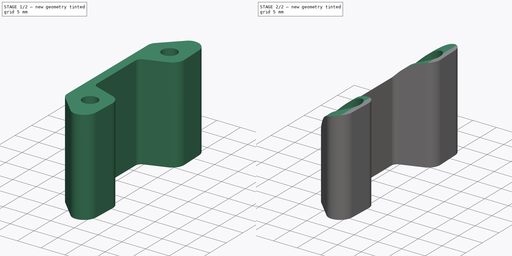
[diagram: build sequence overview — one tinted view per stage of 2, left to right]
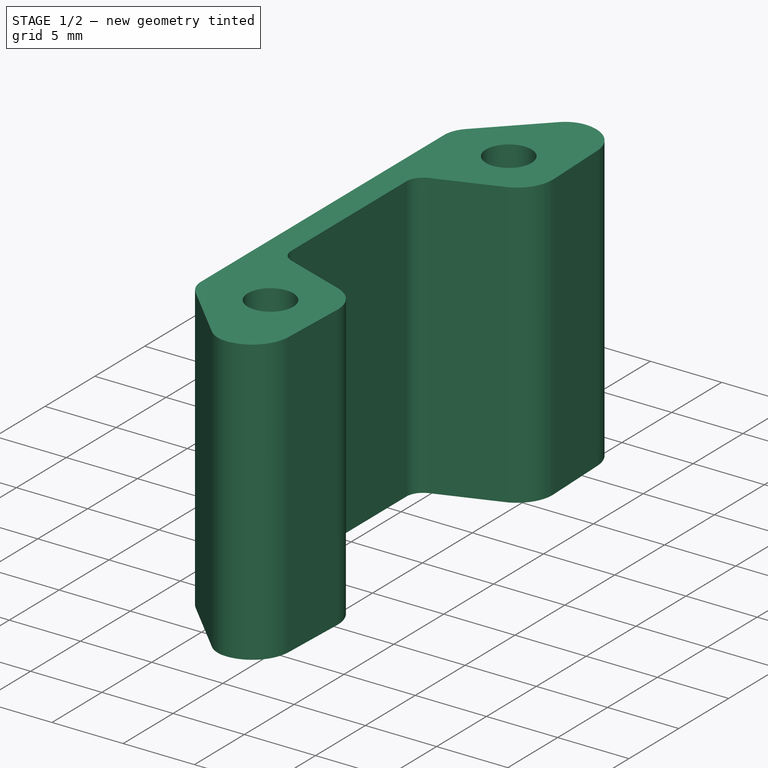
[diagram: stage 1 of 2 — iso view after this stage's code; geometry added in this stage tinted green]
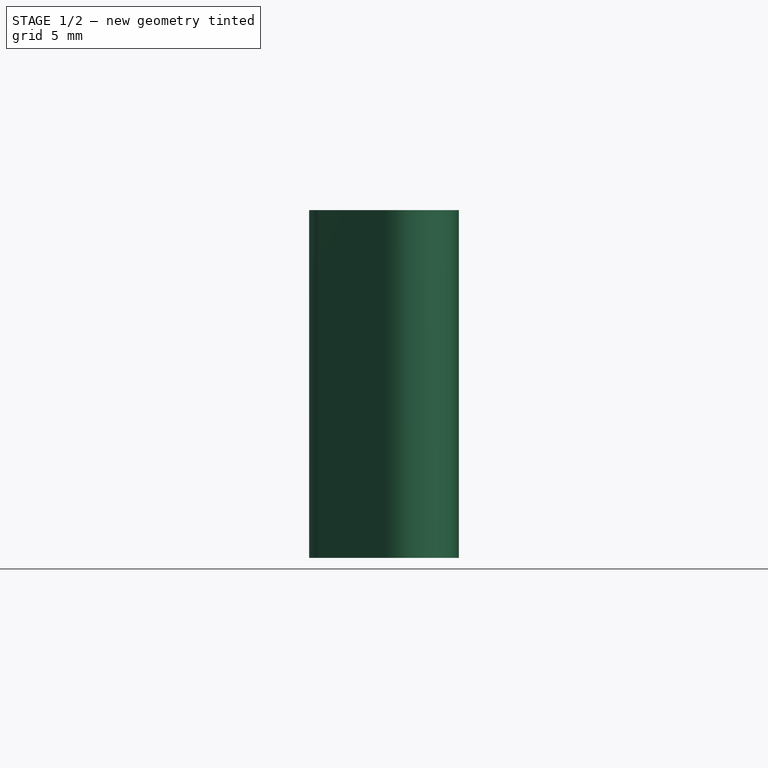
[diagram: stage 1 of 2 — front view after this stage's code; geometry added in this stage tinted green]
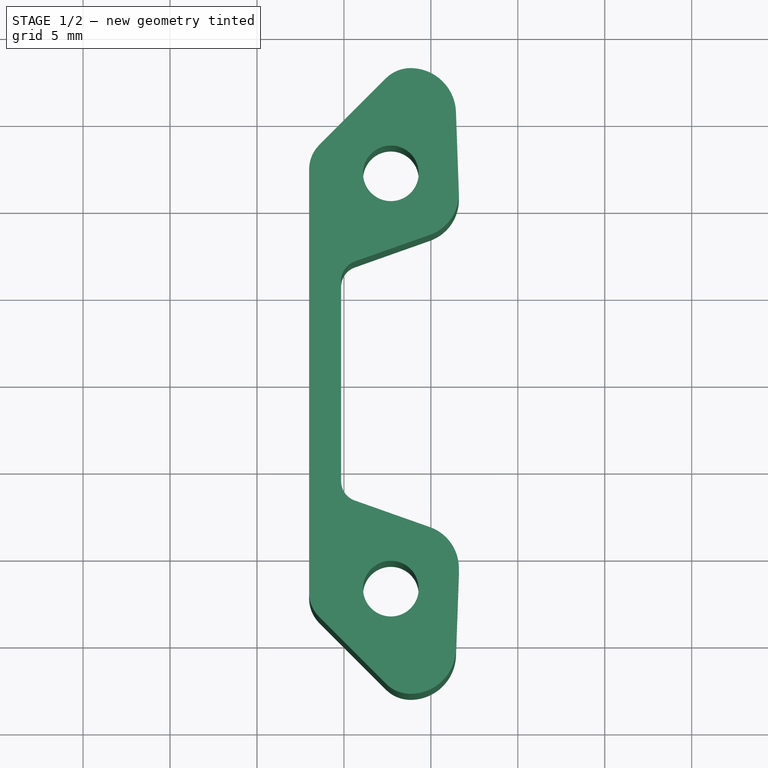
[diagram: stage 1 of 2 — top view after this stage's code; geometry added in this stage tinted green]
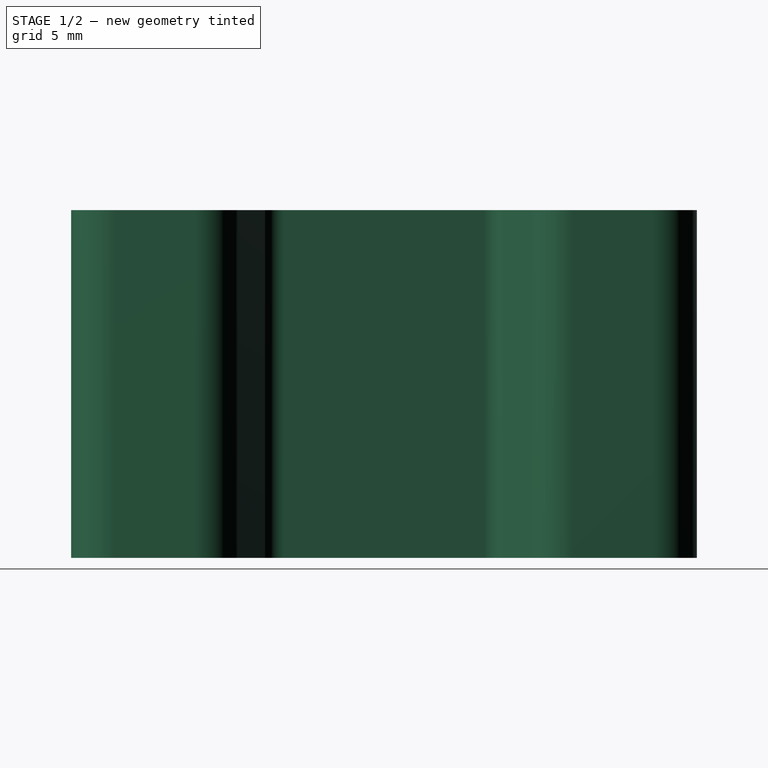
[diagram: stage 1 of 2 — right view after this stage's code; geometry added in this stage tinted green]
FCSTD DOCUMENT  (FreeCAD 1.0R39319 (Git))
Label: K93-10436-H7-L120_Bumperino
License: All rights reserved
LicenseURL: https://en.wikipedia.org/wiki/All_rights_reserved
objects: Part::Feature×5, Sketcher::SketchObject×3, PartDesign::Pocket×2, App::DocumentObjectGroupPython×1, PartDesign::Pad×1, PartDesign::Mirrored×1, PartDesign::Body×1
note: 23 computed .brp shape members not serialized (recipe doc carries the construction recipe); baked Part::Feature solids carry a one-line shape summary decoded from their .brp

FEATURE [App::DocumentObjectGroupPython] LayerContainer  label="Layers"  # scripted group (container) (typed FeaturePython)
FEATURE [Part::Feature] Wire
  shape: bbox 3.2 x 3.2 x 2e-07 mm, 0 faces, 0 solids (baked)
FEATURE [Part::Feature] Wire001
  shape: bbox 3.2 x 3.2 x 2e-07 mm, 0 faces, 0 solids (baked)
FEATURE [Part::Feature] Wire002
  shape: bbox 3.2 x 3.2 x 2e-07 mm, 0 faces, 0 solids (baked)
FEATURE [Part::Feature] Wire003
  shape: bbox 3.2 x 3.2 x 2e-07 mm, 0 faces, 0 solids (baked)
FEATURE [Part::Feature] Wire004  label="PanelConture"
  shape: bbox 104 x 35.99 x 2e-07 mm, 0 faces, 0 solids (baked)
FEATURE [Sketcher::SketchObject] Sketch
  ArcFitTolerance = 1e-06
  FullyConstrained = true
  MakeInternals = false
  sketch-geometry (12):
    g0: ArcOfCircle CenterX=-46.1716 CenterY=15.9943 CenterZ=0 NormalX=0 NormalY=0 NormalZ=1 AngleXU=0 Radius=1.99973 StartAngle=1.5708 EndAngle=2.35633
    g1: LineSegment StartX=-47.5858 StartY=17.4081 StartZ=0 EndX=-51.4142 EndY=13.5801 EndZ=0
    g2: ArcOfCircle CenterX=-50 CenterY=12.1658 CenterZ=0 NormalX=0 NormalY=0 NormalZ=1 AngleXU=0 Radius=2 StartAngle=2.35619 EndAngle=3.14159
    g3: ArcOfCircle CenterX=-46.1716 CenterY=15.3778 CenterZ=0 NormalX=0 NormalY=0 NormalZ=1 AngleXU=0 Radius=2.6162 StartAngle=0.0358549 EndAngle=1.5708
    g4: LineSegment StartX=-43.5571 StartY=15.4716 StartZ=0 EndX=-43.3913 EndY=10.8516 EndZ=0
    g5: ArcOfCircle CenterX=-45.8905 CenterY=10.7619 CenterZ=0 NormalX=0 NormalY=0 NormalZ=1 AngleXU=0 Radius=2.50074 StartAngle=5.05273 EndAngle=6.31904
    g6: LineSegment StartX=-45.0557 StartY=8.40462 StartZ=0 EndX=-49.3762 EndY=6.87461 EndZ=0
    g7: ArcOfCircle CenterX=-48.9841 CenterY=5.76738 CenterZ=0 NormalX=0 NormalY=0 NormalZ=1 AngleXU=0 Radius=1.17461 StartAngle=1.91114 EndAngle=3.14159
    g8: LineSegment StartX=-50.1587 StartY=5.76738 StartZ=0 EndX=-50.1587 EndY=0 EndZ=0
    g9: LineSegment StartX=-50.1587 StartY=0 StartZ=0 EndX=-52 EndY=0 EndZ=0
    g10: LineSegment StartX=-52 StartY=12.1658 StartZ=0 EndX=-52 EndY=0 EndZ=0
    g11: Circle CenterX=-47.3 CenterY=11.9443 CenterZ=0 NormalX=0 NormalY=0 NormalZ=1 AngleXU=0 Radius=1.6
  constraints (22):
    c: Coincident(g0,g1)
    c: Coincident(g1,g2)
    c: Block(g0)
    c: Block(g1)
    c: Block(g2)
    c: PointOnObject(g8,g-1)
    c: Tangent(g7,g6) = -1.5708
    c: Tangent(g8,g7) = -1.5708
    c: Tangent(g6,g5) = 1.5708
    c: Tangent(g5,g4) = 1.5708
    c: Tangent(g4,g3) = 1.5708
    c: Coincident(g9,g8)
    c: Horizontal(g9)
    c: Tangent(g10,g2) = -1.5708
    c: Coincident(g10,g9)
    c: Vertical(g10)
    c: Block(g10)
    c: Block(g7)
    c: Block(g5)
    c: Tangent(g0,g3) = -1.5708
    c: Block(g3)
    c: Block(g11)
FEATURE [PartDesign::Pad] Pad  label="LengthBumper"
  Direction = (0,0,1)
  Length = 20
  Length2 = 10
  Profile = -> Sketch
  ReferenceAxis = -> Sketch [N_Axis]
  Refine = true
  Suppressed = false
  Type = 0
FEATURE [PartDesign::Mirrored] Mirrored
  BaseFeature = -> Pad
  MirrorPlane = -> Sketch [H_Axis]
  Originals = -> [Pad]
  Refine = true
  Suppressed = false
  TransformMode = 0
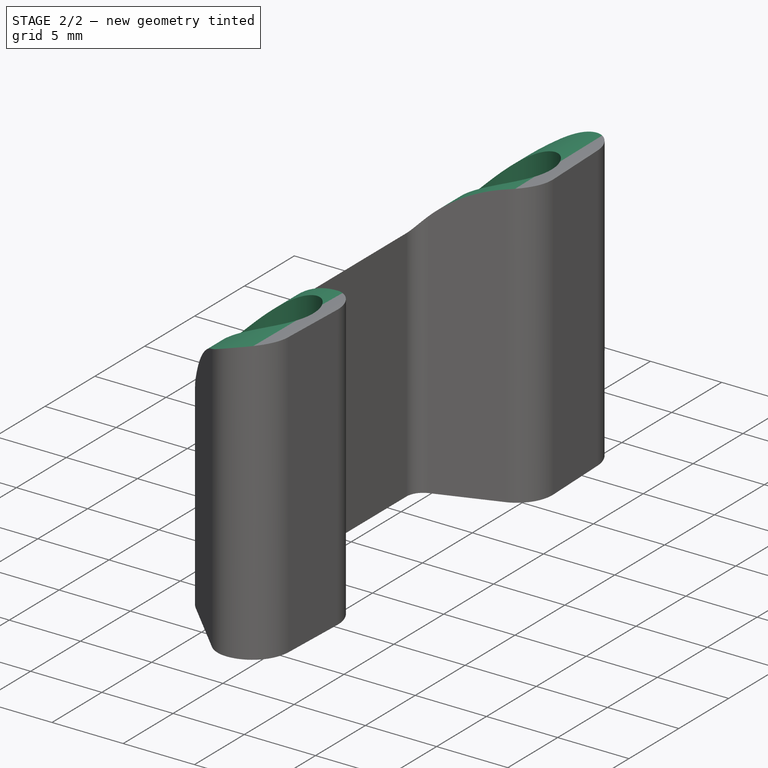
[diagram: stage 2 of 2 — iso view after this stage's code; geometry added in this stage tinted green]
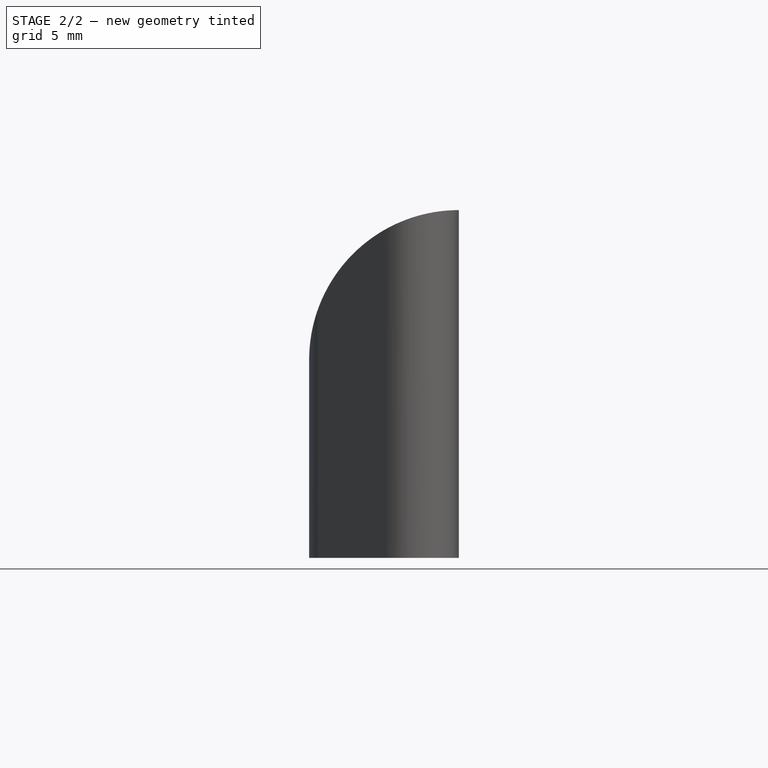
[diagram: stage 2 of 2 — front view after this stage's code; geometry added in this stage tinted green]
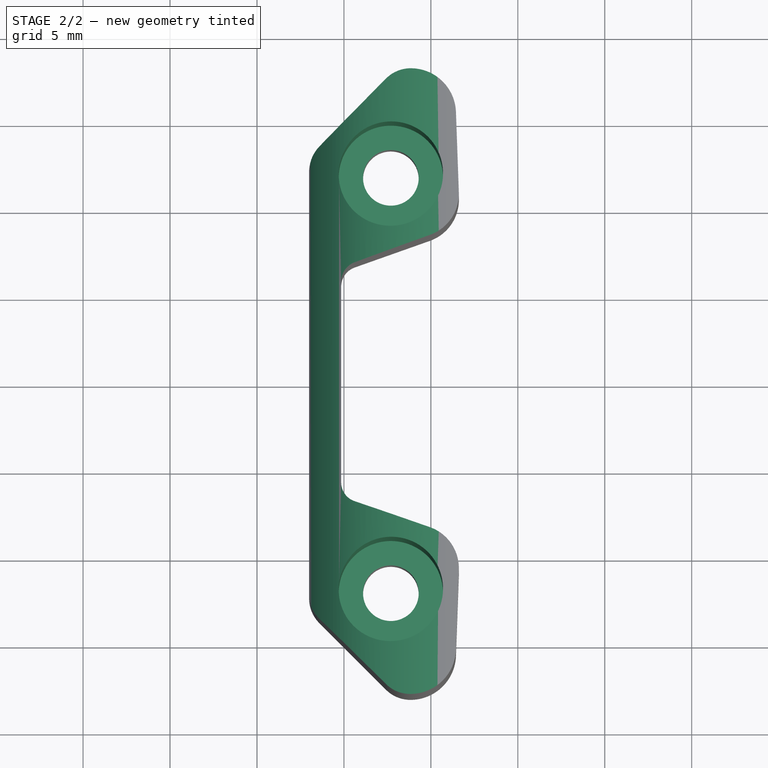
[diagram: stage 2 of 2 — top view after this stage's code; geometry added in this stage tinted green]
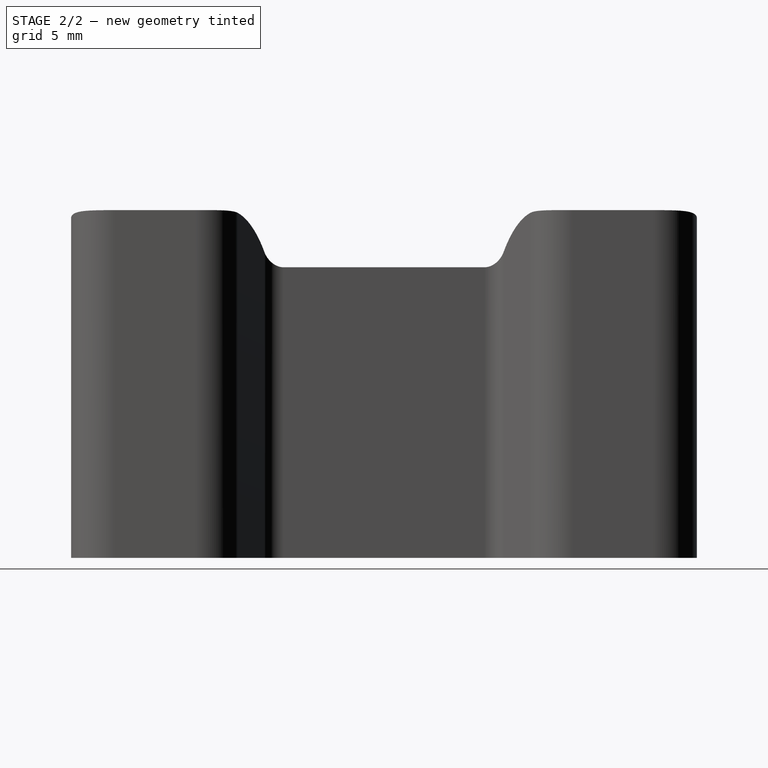
[diagram: stage 2 of 2 — right view after this stage's code; geometry added in this stage tinted green]
FEATURE [Sketcher::SketchObject] Sketch001
  ArcFitTolerance = 1e-06
  AttachmentSupport = -> [Mirrored]
  ExternalGeometry = -> [Mirrored]
  FullyConstrained = true
  MakeInternals = false
  MapMode = 5
  Placement = pos=(0,0,20) rot=(0,0,1;0rad)
  sketch-geometry (2):
    g0: Circle CenterX=-47.3 CenterY=11.9443 CenterZ=0 NormalX=0 NormalY=0 NormalZ=1 AngleXU=0 Radius=3
    g1: Circle CenterX=-47.3 CenterY=-11.9443 CenterZ=0 NormalX=0 NormalY=0 NormalZ=1 AngleXU=0 Radius=3
  constraints (4):
    c: Coincident(g0,g-3)
    c: Coincident(g1,g-4)
    c: Diameter(g1) = 6
    c: Equal(g0,g1)
FEATURE [PartDesign::Pocket] Pocket
  BaseFeature = -> Mirrored
  Direction = (0,0,-1)
  Length = 0
  Length2 = 5
  Offset = 5
  Profile = -> Sketch001
  ReferenceAxis = -> Sketch001 [N_Axis]
  Refine = true
  Suppressed = false
  Type = 3
  UpToFace = -> Mirrored [Face9]
FEATURE [Sketcher::SketchObject] Sketch002
  ArcFitTolerance = 1e-06
  AttachmentSupport = -> [XZ_Plane]
  ExternalGeometry = -> [Pocket]
  FullyConstrained = true
  MakeInternals = false
  MapMode = 5
  Placement = pos=(0,0,0) rot=(1,0,0;1.5708rad)
  sketch-geometry (3):
    g0: LineSegment StartX=-43.3913 StartY=20 StartZ=0 EndX=-52 EndY=20 EndZ=0
    g1: LineSegment StartX=-52 StartY=20 StartZ=0 EndX=-52 EndY=11.3914 EndZ=0
    g2: ArcOfCircle CenterX=-43.3913 CenterY=11.3913 CenterZ=0 NormalX=0 NormalY=0 NormalZ=1 AngleXU=0 Radius=8.60867 StartAngle=1.5708 EndAngle=3.14159
  constraints (8):
    c: Coincident(g0,g-3)
    c: Coincident(g0,g-5)
    c: Coincident(g1,g0)
    c: PointOnObject(g1,g-5)
    c: PointOnObject(g2,g-6)
    c: Coincident(g2,g1)
    c: Coincident(g2,g0)
    c: Tangent(g2,g-5)
FEATURE [PartDesign::Pocket] Pocket001
  BaseFeature = -> Pocket
  Direction = (0,1,-2e-16)
  Length = 5
  Length2 = 5
  Midplane = true
  Profile = -> Sketch002
  ReferenceAxis = -> Sketch002 [N_Axis]
  Refine = true
  Suppressed = false
  Type = 1
FEATURE [PartDesign::Body] Body
  AllowCompound = false
  Group = -> [Sketch,Pad,Mirrored,Sketch001,Pocket,Sketch002,Pocket001]
  Origin = -> Origin
  Placement = pos=(0,0,0) rot=(1,0,0;1.5708rad)
  Tip = -> Pocket001
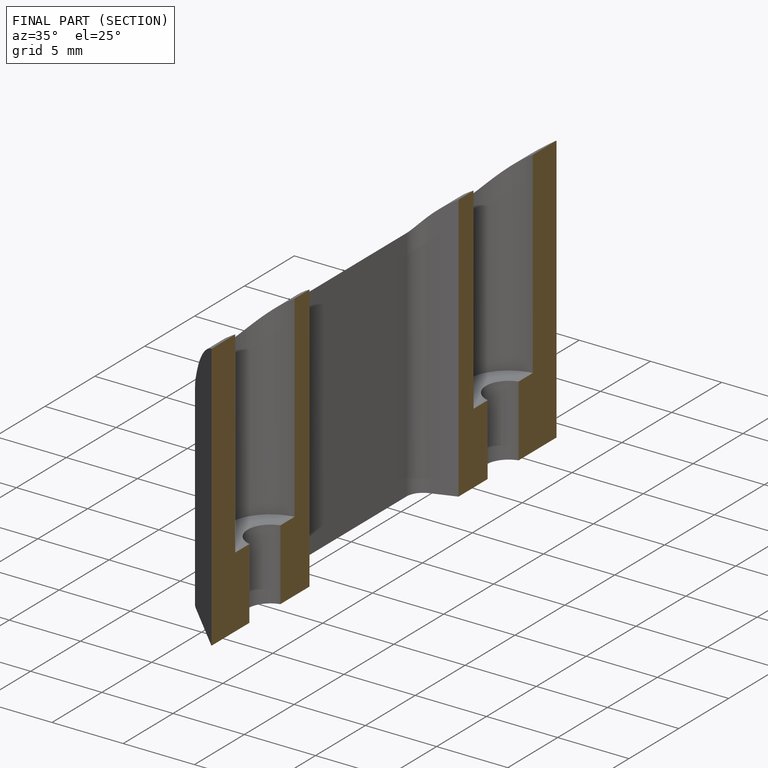
[diagram: finished part — half-section view (interior)]
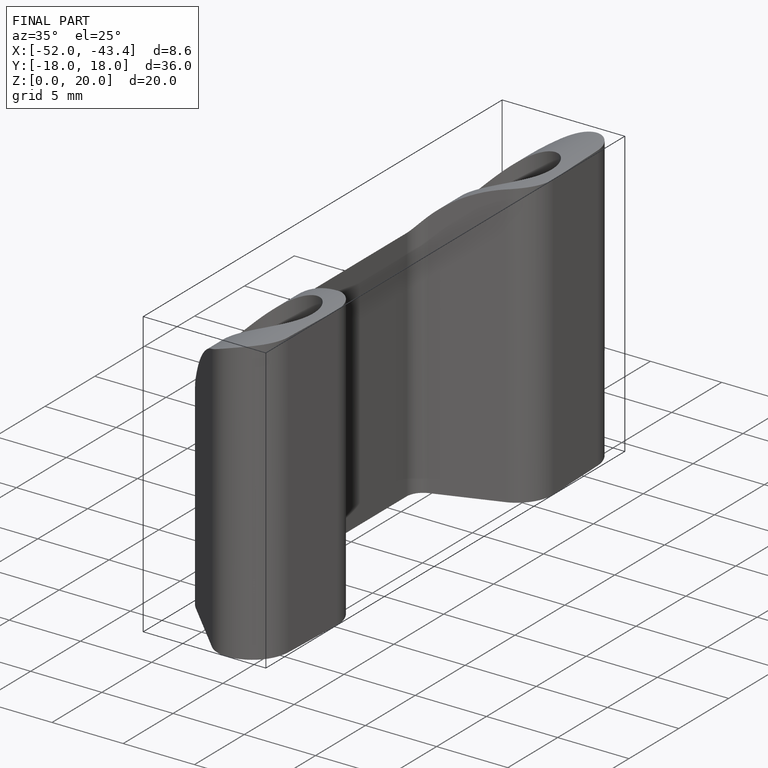
[diagram: finished part — iso view with bounding-box wireframe]
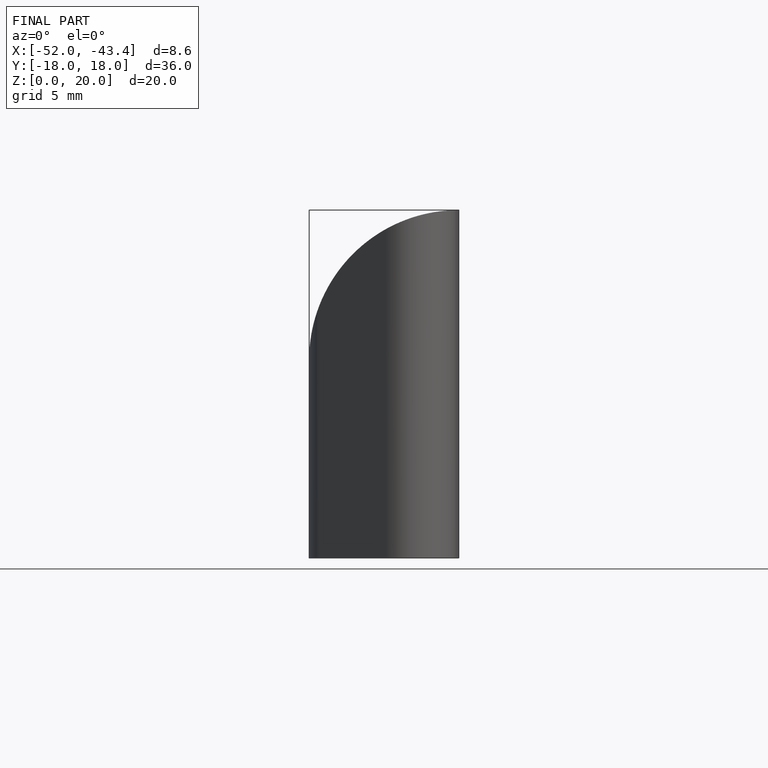
[diagram: finished part — front view with bounding-box wireframe]
